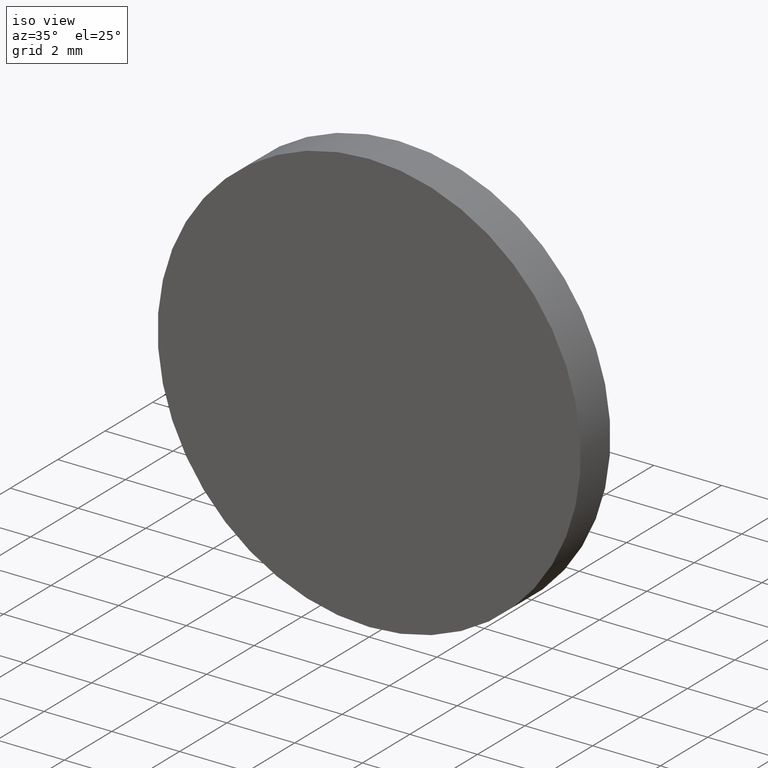
[diagram: clean part render]
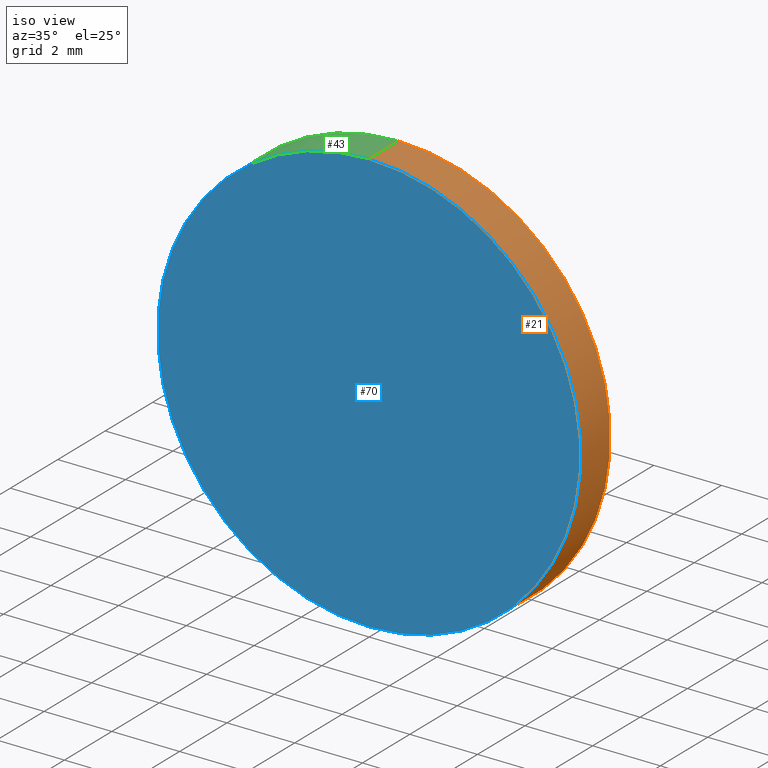
[diagram: same view with three faces highlighted in distinct colors, each labeled with its STEP entity id]
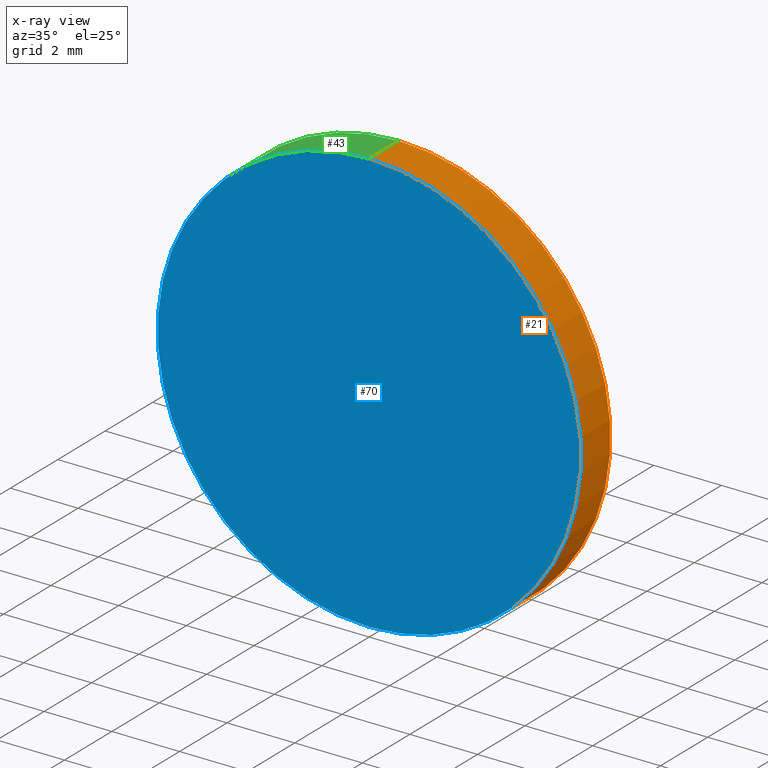
[diagram: x-ray of the same camera — body ghosted, the three highlighted faces saturated]
A machine part, iso view with three faces highlighted in distinct colors.
The next image is the same camera in x-ray (body ghosted, the three faces saturated) — at least one of them is partly hidden behind the body in this view.
Their STEP definitions:

[orange] entity #21 — the highlighted cylindrical surface (partial cylindrical patch) has radius 6.25 mm, axis along (-0, -1, -0).
#2 = CARTESIAN_POINT ( 'NONE',  ( 0.0000000000000000000, 1.250000000000000000, -6.250000000000000000 ) ) ;
#3 = VERTEX_POINT ( 'NONE', #31 ) ;
#13 = LINE ( 'NONE', #112, #109 ) ;
#15 = EDGE_CURVE ( 'NONE', #82, #124, #107, .T. ) ;
#21 = ADVANCED_FACE ( 'NONE', ( #25 ), #36, .T. ) ;
#22 = DIRECTION ( 'NONE',  ( 0.0000000000000000000, 1.000000000000000000, 0.0000000000000000000 ) ) ;
#23 = CARTESIAN_POINT ( 'NONE',  ( 0.0000000000000000000, 1.250000000000000000, 0.0000000000000000000 ) ) ;
#25 = FACE_OUTER_BOUND ( 'NONE', #108, .T. ) ;
#27 = DIRECTION ( 'NONE',  ( 0.0000000000000000000, 0.0000000000000000000, 1.000000000000000000 ) ) ;
#31 = CARTESIAN_POINT ( 'NONE',  ( 7.654042494670957600E-016, 1.250000000000000000, 6.250000000000000000 ) ) ;
#33 = VERTEX_POINT ( 'NONE', #2 ) ;
#35 = ORIENTED_EDGE ( 'NONE', *, *, #131, .F. ) ;
#36 = CYLINDRICAL_SURFACE ( 'NONE', #65, 6.250000000000000000 ) ;
#39 = EDGE_CURVE ( 'NONE', #3, #82, #13, .T. ) ;
#57 = DIRECTION ( 'NONE',  ( -0.0000000000000000000, -1.000000000000000000, -0.0000000000000000000 ) ) ;
#59 = DIRECTION ( 'NONE',  ( -0.0000000000000000000, -1.000000000000000000, -0.0000000000000000000 ) ) ;
#60 = ORIENTED_EDGE ( 'NONE', *, *, #39, .T. ) ;
#64 = AXIS2_PLACEMENT_3D ( 'NONE', #23, #22, #27 ) ;
#65 = AXIS2_PLACEMENT_3D ( 'NONE', #111, #57, #93 ) ;
#66 = CARTESIAN_POINT ( 'NONE',  ( 0.0000000000000000000, 0.0000000000000000000, -6.250000000000000000 ) ) ;
#82 = VERTEX_POINT ( 'NONE', #85 ) ;
#84 = ORIENTED_EDGE ( 'NONE', *, *, #15, .T. ) ;
#85 = CARTESIAN_POINT ( 'NONE',  ( 7.654042494670957600E-016, 0.0000000000000000000, 6.250000000000000000 ) ) ;
#89 = ORIENTED_EDGE ( 'NONE', *, *, #136, .F. ) ;
#93 = DIRECTION ( 'NONE',  ( 0.0000000000000000000, 0.0000000000000000000, -1.000000000000000000 ) ) ;
#95 = CIRCLE ( 'NONE', #64, 6.250000000000000000 ) ;
#100 = VECTOR ( 'NONE', #132, 1000.000000000000000 ) ;
#104 = CARTESIAN_POINT ( 'NONE',  ( 0.0000000000000000000, 1.250000000000000000, -6.250000000000000000 ) ) ;
#107 = CIRCLE ( 'NONE', #126, 6.250000000000000000 ) ;
#108 = EDGE_LOOP ( 'NONE', ( #35, #60, #84, #89 ) ) ;
#109 = VECTOR ( 'NONE', #59, 1000.000000000000000 ) ;
#111 = CARTESIAN_POINT ( 'NONE',  ( 0.0000000000000000000, 1.250000000000000000, 0.0000000000000000000 ) ) ;
#112 = CARTESIAN_POINT ( 'NONE',  ( 7.654042494670957600E-016, 1.250000000000000000, 6.250000000000000000 ) ) ;
#120 = DIRECTION ( 'NONE',  ( 0.0000000000000000000, 1.000000000000000000, 0.0000000000000000000 ) ) ;
#124 = VERTEX_POINT ( 'NONE', #66 ) ;
#125 = DIRECTION ( 'NONE',  ( 0.0000000000000000000, 0.0000000000000000000, 1.000000000000000000 ) ) ;
#126 = AXIS2_PLACEMENT_3D ( 'NONE', #139, #120, #125 ) ;
#129 = LINE ( 'NONE', #104, #100 ) ;
#131 = EDGE_CURVE ( 'NONE', #3, #33, #95, .T. ) ;
#132 = DIRECTION ( 'NONE',  ( -0.0000000000000000000, -1.000000000000000000, -0.0000000000000000000 ) ) ;
#136 = EDGE_CURVE ( 'NONE', #33, #124, #129, .T. ) ;
#139 = CARTESIAN_POINT ( 'NONE',  ( 0.0000000000000000000, 0.0000000000000000000, 0.0000000000000000000 ) ) ;

[blue] entity #70 — the highlighted planar face has unit normal (0, 1, 0).
#15 = EDGE_CURVE ( 'NONE', #82, #124, #107, .T. ) ;
#30 = AXIS2_PLACEMENT_3D ( 'NONE', #77, #75, #74 ) ;
#37 = AXIS2_PLACEMENT_3D ( 'NONE', #81, #50, #54 ) ;
#50 = DIRECTION ( 'NONE',  ( 0.0000000000000000000, 1.000000000000000000, 0.0000000000000000000 ) ) ;
#51 = PLANE ( 'NONE',  #37 ) ;
#54 = DIRECTION ( 'NONE',  ( 0.0000000000000000000, -0.0000000000000000000, 1.000000000000000000 ) ) ;
#55 = EDGE_LOOP ( 'NONE', ( #101, #137 ) ) ;
#66 = CARTESIAN_POINT ( 'NONE',  ( 0.0000000000000000000, 0.0000000000000000000, -6.250000000000000000 ) ) ;
#68 = CIRCLE ( 'NONE', #30, 6.250000000000000000 ) ;
#70 = ADVANCED_FACE ( 'NONE', ( #102 ), #51, .F. ) ;
#74 = DIRECTION ( 'NONE',  ( 0.0000000000000000000, 0.0000000000000000000, 1.000000000000000000 ) ) ;
#75 = DIRECTION ( 'NONE',  ( 0.0000000000000000000, 1.000000000000000000, 0.0000000000000000000 ) ) ;
#77 = CARTESIAN_POINT ( 'NONE',  ( 0.0000000000000000000, 0.0000000000000000000, 0.0000000000000000000 ) ) ;
#81 = CARTESIAN_POINT ( 'NONE',  ( 0.0000000000000000000, 0.0000000000000000000, 0.0000000000000000000 ) ) ;
#82 = VERTEX_POINT ( 'NONE', #85 ) ;
#85 = CARTESIAN_POINT ( 'NONE',  ( 7.654042494670957600E-016, 0.0000000000000000000, 6.250000000000000000 ) ) ;
#101 = ORIENTED_EDGE ( 'NONE', *, *, #134, .F. ) ;
#102 = FACE_OUTER_BOUND ( 'NONE', #55, .T. ) ;
#107 = CIRCLE ( 'NONE', #126, 6.250000000000000000 ) ;
#120 = DIRECTION ( 'NONE',  ( 0.0000000000000000000, 1.000000000000000000, 0.0000000000000000000 ) ) ;
#124 = VERTEX_POINT ( 'NONE', #66 ) ;
#125 = DIRECTION ( 'NONE',  ( 0.0000000000000000000, 0.0000000000000000000, 1.000000000000000000 ) ) ;
#126 = AXIS2_PLACEMENT_3D ( 'NONE', #139, #120, #125 ) ;
#134 = EDGE_CURVE ( 'NONE', #124, #82, #68, .T. ) ;
#137 = ORIENTED_EDGE ( 'NONE', *, *, #15, .F. ) ;
#139 = CARTESIAN_POINT ( 'NONE',  ( 0.0000000000000000000, 0.0000000000000000000, 0.0000000000000000000 ) ) ;

[green] entity #43 — the highlighted cylindrical surface (partial cylindrical patch) has radius 6.25 mm, axis along (-0, -1, -0).
#2 = CARTESIAN_POINT ( 'NONE',  ( 0.0000000000000000000, 1.250000000000000000, -6.250000000000000000 ) ) ;
#3 = VERTEX_POINT ( 'NONE', #31 ) ;
#4 = CIRCLE ( 'NONE', #9, 6.250000000000000000 ) ;
#9 = AXIS2_PLACEMENT_3D ( 'NONE', #48, #38, #114 ) ;
#10 = ORIENTED_EDGE ( 'NONE', *, *, #39, .F. ) ;
#13 = LINE ( 'NONE', #112, #109 ) ;
#24 = EDGE_CURVE ( 'NONE', #33, #3, #4, .T. ) ;
#30 = AXIS2_PLACEMENT_3D ( 'NONE', #77, #75, #74 ) ;
#31 = CARTESIAN_POINT ( 'NONE',  ( 7.654042494670957600E-016, 1.250000000000000000, 6.250000000000000000 ) ) ;
#33 = VERTEX_POINT ( 'NONE', #2 ) ;
#38 = DIRECTION ( 'NONE',  ( 0.0000000000000000000, 1.000000000000000000, 0.0000000000000000000 ) ) ;
#39 = EDGE_CURVE ( 'NONE', #3, #82, #13, .T. ) ;
#41 = ORIENTED_EDGE ( 'NONE', *, *, #136, .T. ) ;
#43 = ADVANCED_FACE ( 'NONE', ( #79 ), #122, .T. ) ;
#47 = EDGE_LOOP ( 'NONE', ( #10, #96, #41, #72 ) ) ;
#48 = CARTESIAN_POINT ( 'NONE',  ( 0.0000000000000000000, 1.250000000000000000, 0.0000000000000000000 ) ) ;
#59 = DIRECTION ( 'NONE',  ( -0.0000000000000000000, -1.000000000000000000, -0.0000000000000000000 ) ) ;
#66 = CARTESIAN_POINT ( 'NONE',  ( 0.0000000000000000000, 0.0000000000000000000, -6.250000000000000000 ) ) ;
#68 = CIRCLE ( 'NONE', #30, 6.250000000000000000 ) ;
#72 = ORIENTED_EDGE ( 'NONE', *, *, #134, .T. ) ;
#74 = DIRECTION ( 'NONE',  ( 0.0000000000000000000, 0.0000000000000000000, 1.000000000000000000 ) ) ;
#75 = DIRECTION ( 'NONE',  ( 0.0000000000000000000, 1.000000000000000000, 0.0000000000000000000 ) ) ;
#77 = CARTESIAN_POINT ( 'NONE',  ( 0.0000000000000000000, 0.0000000000000000000, 0.0000000000000000000 ) ) ;
#79 = FACE_OUTER_BOUND ( 'NONE', #47, .T. ) ;
#82 = VERTEX_POINT ( 'NONE', #85 ) ;
#85 = CARTESIAN_POINT ( 'NONE',  ( 7.654042494670957600E-016, 0.0000000000000000000, 6.250000000000000000 ) ) ;
#86 = CARTESIAN_POINT ( 'NONE',  ( 0.0000000000000000000, 1.250000000000000000, 0.0000000000000000000 ) ) ;
#96 = ORIENTED_EDGE ( 'NONE', *, *, #24, .F. ) ;
#100 = VECTOR ( 'NONE', #132, 1000.000000000000000 ) ;
#104 = CARTESIAN_POINT ( 'NONE',  ( 0.0000000000000000000, 1.250000000000000000, -6.250000000000000000 ) ) ;
#106 = AXIS2_PLACEMENT_3D ( 'NONE', #86, #121, #118 ) ;
#109 = VECTOR ( 'NONE', #59, 1000.000000000000000 ) ;
#112 = CARTESIAN_POINT ( 'NONE',  ( 7.654042494670957600E-016, 1.250000000000000000, 6.250000000000000000 ) ) ;
#114 = DIRECTION ( 'NONE',  ( 0.0000000000000000000, 0.0000000000000000000, 1.000000000000000000 ) ) ;
#118 = DIRECTION ( 'NONE',  ( 0.0000000000000000000, 0.0000000000000000000, -1.000000000000000000 ) ) ;
#121 = DIRECTION ( 'NONE',  ( -0.0000000000000000000, -1.000000000000000000, -0.0000000000000000000 ) ) ;
#122 = CYLINDRICAL_SURFACE ( 'NONE', #106, 6.250000000000000000 ) ;
#124 = VERTEX_POINT ( 'NONE', #66 ) ;
#129 = LINE ( 'NONE', #104, #100 ) ;
#132 = DIRECTION ( 'NONE',  ( -0.0000000000000000000, -1.000000000000000000, -0.0000000000000000000 ) ) ;
#134 = EDGE_CURVE ( 'NONE', #124, #82, #68, .T. ) ;
#136 = EDGE_CURVE ( 'NONE', #33, #124, #129, .T. ) ;